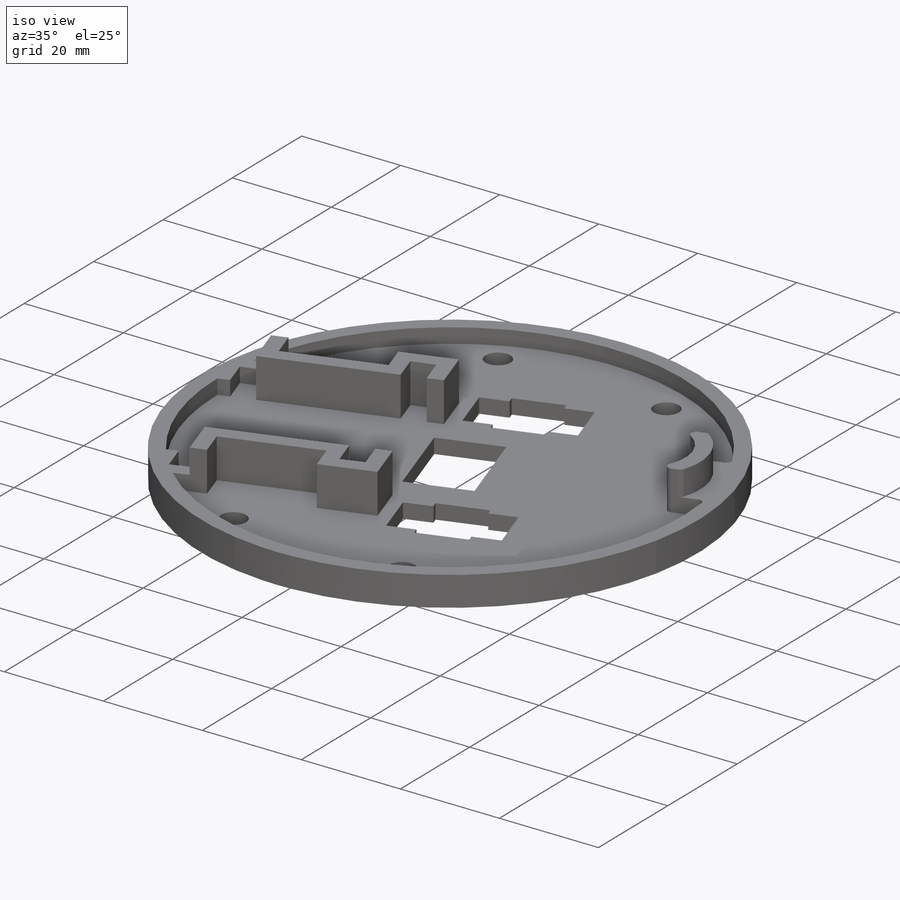
[diagram: iso view]
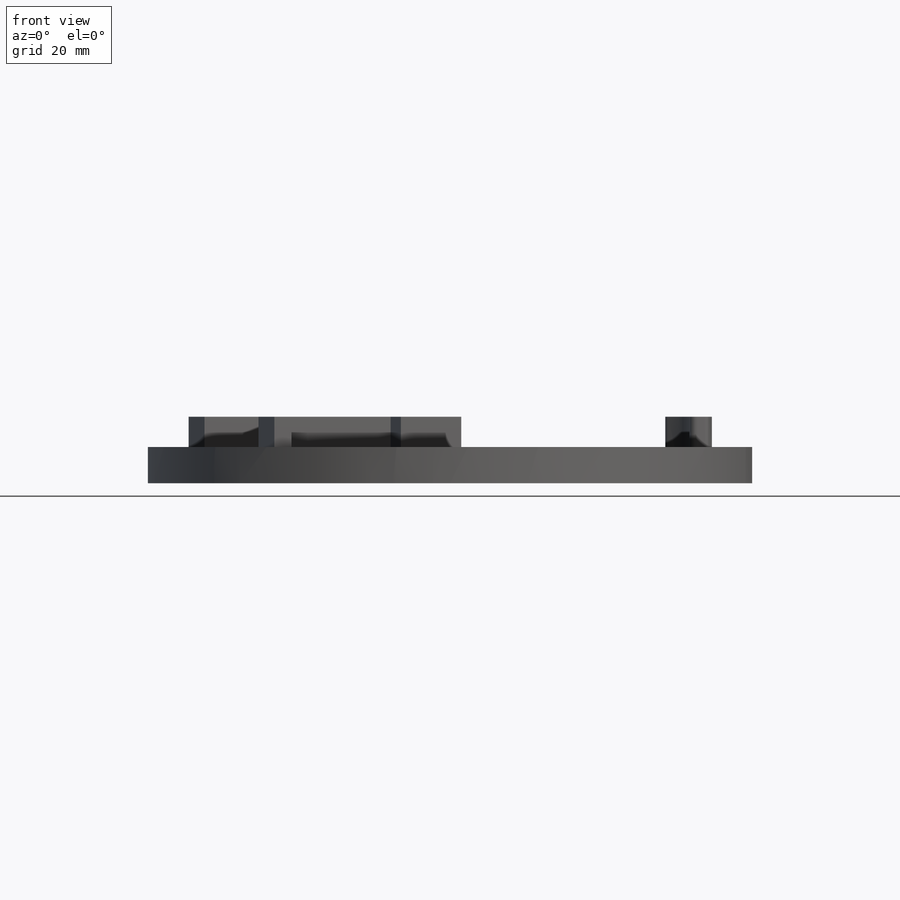
[diagram: front view]
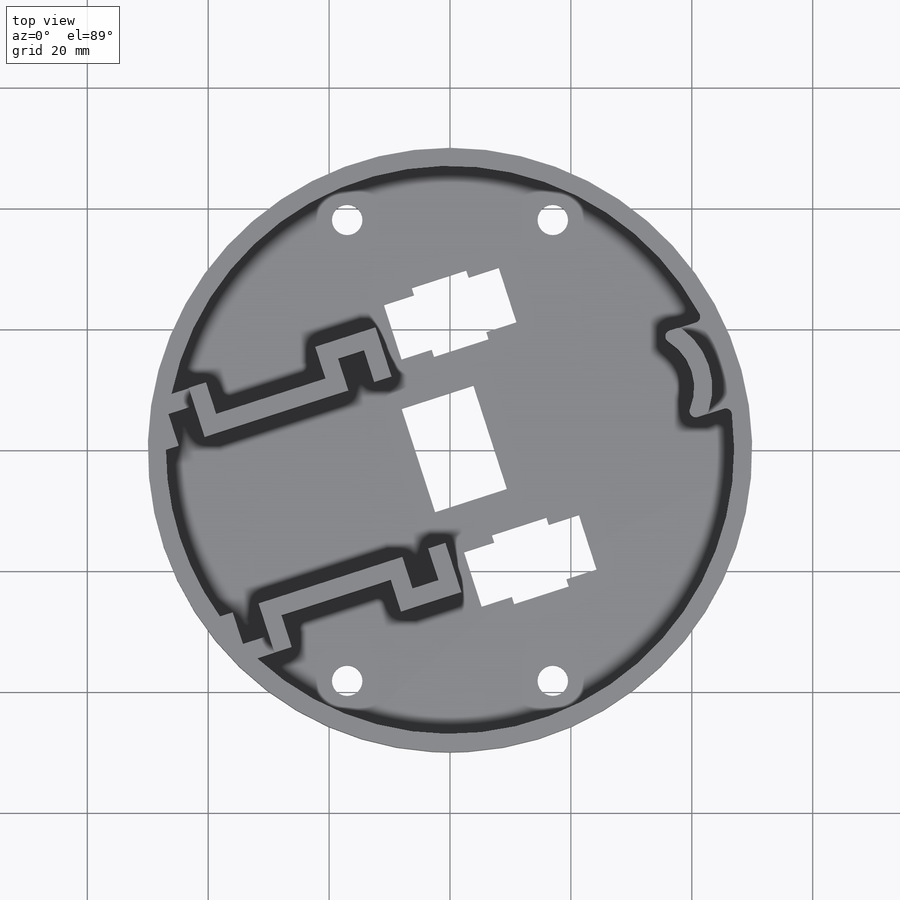
[diagram: top view]
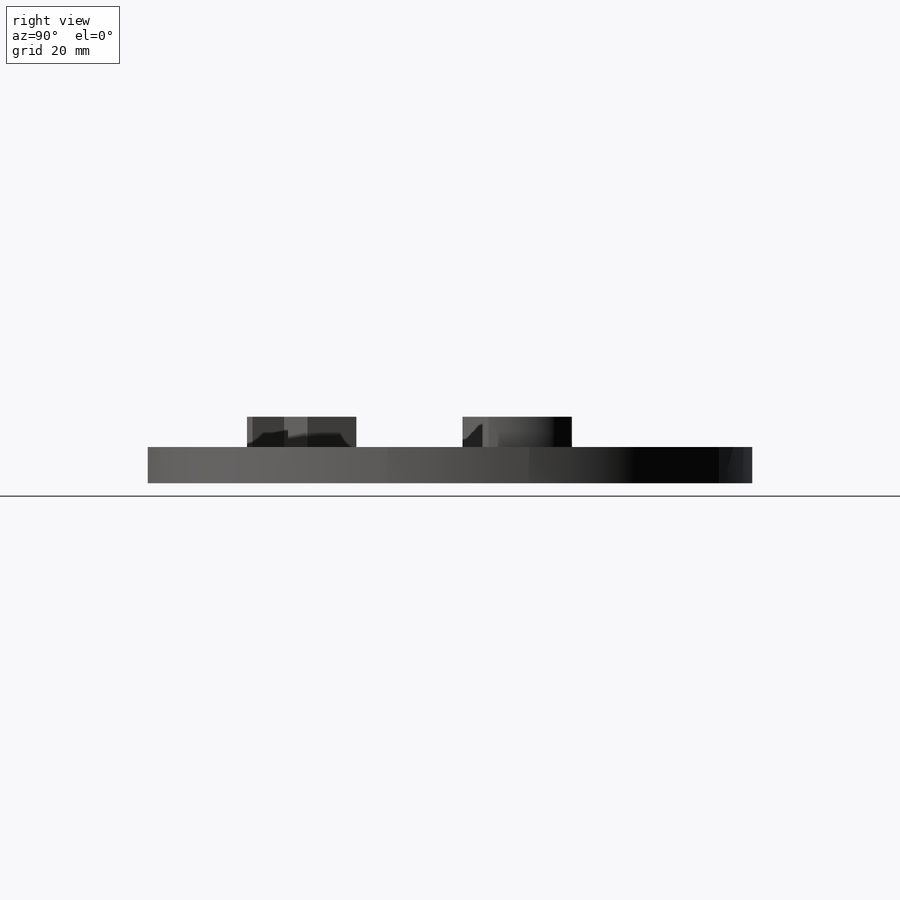
[diagram: right view]
SOLIDWORKS PART (.sldprt)
format: sldprt  version: not decoded by parser v0  size: 547,328 bytes
history: native  units: mm
features: sketch x9, extrude x6, material x1, cut_extrude x1, hole x1, fillet x1 + 1 further entry (+17 scaffold rows collapsed; 3 parser-record rows omitted)
feature tree (40):
  scaffold x17  (default folders/planes/origin — collapsed)
  material  "ABS"
  "a_base_t"
  parser-record x3  (decoder bookkeeping rows leaked as tree rows — omitted from the tree; the rows remain in map.json)
  sketch  "Sketch1"  dims[D1=~4.67776mm]
  extrude  "Outer Ring"  Depth=3mm
  sketch  "Sketch2"  dims[D1=4.5mm D2=14.5mm D3=5.5mm D4=25.0mm D5=8.5mm D6=3.0mm D7=~4.508296mm]
  extrude  "Servo Frame"  [1 undecoded]
  sketch  "Sketch4"
  extrude  "Patching"  [1 undecoded]
  sketch  "Sketch3"  dims[c1.D1=3.0mm c1.D2=9.0mm c1.D3=20.0mm c1.D4=~19.025761mm c2.D4=~0.66898deg c3.D4=7.75mm c3.D5=9.5mm c4.D4=1.25mm c4.D6=7.75mm c4.D7=9.5mm c4.D1=3.0mm c4.D8=20.0mm]
  cut_extrude  "Bottom Holes"  [1 undecoded]
  sketch  "Sketch8"  dims[D1=0.0mm]
  extrude  "Servo Frame Extension"  Depth=5mm
  hole  "#8 (0.199) Diameter Hole1"  Diameter=5.0546mm Depth=10mm
  sketch  "Sketch20"
  sketch  "Sketch19"  dims[hole-wizard template sketch: 47 standard entries collapsed; hole parameters kept: c15.Hole Depth=10.0mm c15.D3=~14.816244mm c15.Drill Angle=118.0deg]
  sketch  "Sketch21"  dims[c1.D1=24.0mm c1.D4=~10.128057mm c1.D3=~8.340558mm c1.D2=14.0mm c2.D3=20.0mm c2.D4=~1.871943mm c3.D3=3.0mm c3.D4=15.0mm]
  extrude  "Shell Tab"  [1 undecoded]
  sketch  "Sketch22"  dims[D1=12.0mm]
  extrude  "Shell Tab Extension"  Depth=5mm
  fillet  "Contouring"  Radius=1mm
decode coverage: 12 of 18 modeling features carry decoded parameters; 1 rows unclassified (native names shown)
note: ~ marks probable driven/reference dimensions
note: 4 parameter values undecoded
summary: no parameter record found for 4 features
note: suppression state not decoded; provenance and decode notes live in map.json
